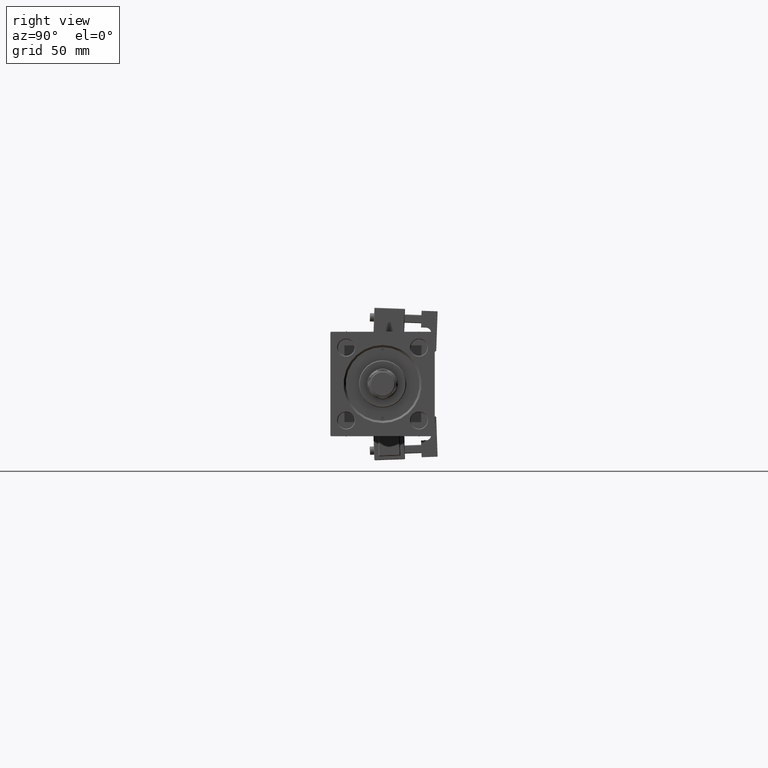
[diagram: clean part render]
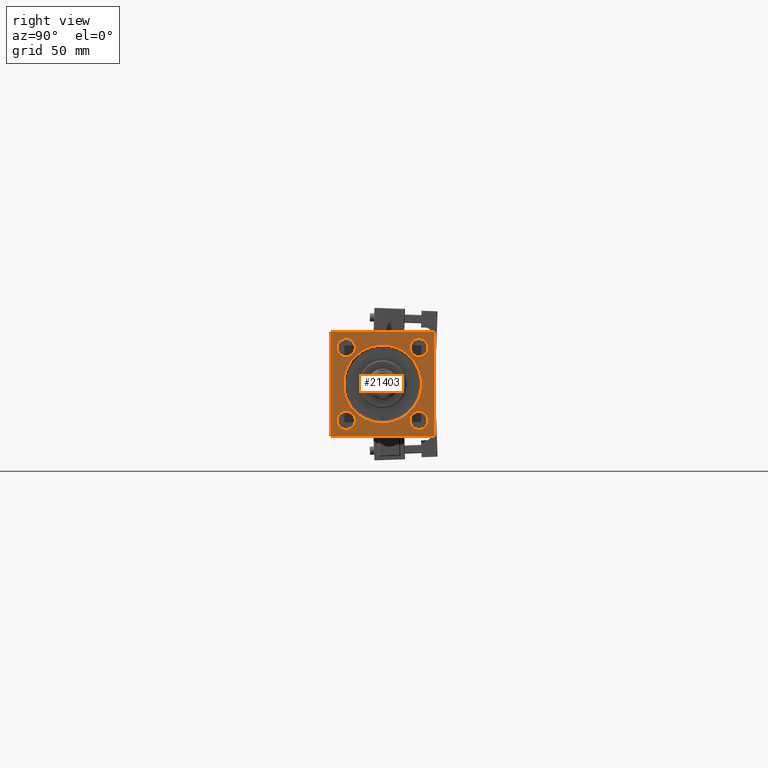
[diagram: same view with one face highlighted and labeled with its STEP entity id]
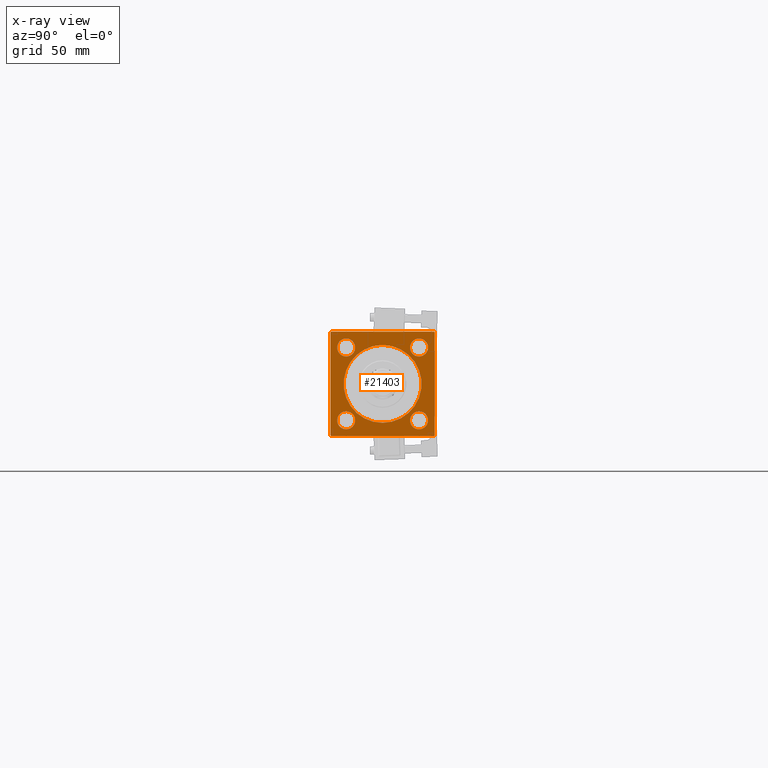
[diagram: x-ray of the same camera — body ghosted, the highlighted face saturated]
A machine part, right view. The second image highlights one B-rep face of the part: STEP entity #21403.
The next image is the same camera in x-ray: the body ghosted, the highlighted face saturated — about 0% of this face is hidden behind the body in this view.
In plain terms, the highlighted planar face has unit normal (-1, 0, 0).
Its self-contained STEP definition (entity closure, byte-faithful):
#16 = EDGE_CURVE ( 'NONE', #51897, #50936, #35708, .T. ) ;
#509 = CARTESIAN_POINT ( 'NONE',  ( 434.0000000000000000, -26.14999999999999147, 26.14999999999999503 ) ) ;
#1224 = CIRCLE ( 'NONE', #45867, 6.500000000000119904 ) ;
#2184 = VERTEX_POINT ( 'NONE', #19121 ) ;
#2664 = LINE ( 'NONE', #40227, #16846 ) ;
#2744 = ORIENTED_EDGE ( 'NONE', *, *, #34315, .T. ) ;
#3252 = CARTESIAN_POINT ( 'NONE',  ( 434.0000000000000000, -36.99999999999994316, 37.49999999999997868 ) ) ;
#3347 = AXIS2_PLACEMENT_3D ( 'NONE', #509, #33945, #13103 ) ;
#3684 = EDGE_CURVE ( 'NONE', #23493, #37325, #12677, .T. ) ;
#3805 = VERTEX_POINT ( 'NONE', #46662 ) ;
#3864 = EDGE_CURVE ( 'NONE', #27398, #12530, #23863, .T. ) ;
#4253 = CARTESIAN_POINT ( 'NONE',  ( 434.0000000000000000, 37.50000000000000000, 37.49999999999999289 ) ) ;
#5393 = VERTEX_POINT ( 'NONE', #18931 ) ;
#5474 = DIRECTION ( 'NONE',  ( 0.000000000000000000, 0.000000000000000000, 1.000000000000000000 ) ) ;
#5615 = EDGE_LOOP ( 'NONE', ( #37468, #13092 ) ) ;
#5618 = EDGE_CURVE ( 'NONE', #45433, #3805, #27642, .T. ) ;
#6652 = VERTEX_POINT ( 'NONE', #20175 ) ;
#6961 = ORIENTED_EDGE ( 'NONE', *, *, #13009, .T. ) ;
#7636 = CARTESIAN_POINT ( 'NONE',  ( 434.0000000000000000, 3.429011037612599137E-15, 28.00000000000008171 ) ) ;
#7690 = DIRECTION ( 'NONE',  ( -1.000000000000000000, -0.000000000000000000, 0.000000000000000000 ) ) ;
#7798 = CARTESIAN_POINT ( 'NONE',  ( 434.0000000000000000, -37.50000000000000711, -36.99999999999989342 ) ) ;
#7810 = ORIENTED_EDGE ( 'NONE', *, *, #53588, .T. ) ;
#8033 = DIRECTION ( 'NONE',  ( -1.000000000000000000, -0.000000000000000000, 0.000000000000000000 ) ) ;
#8087 = ORIENTED_EDGE ( 'NONE', *, *, #23222, .T. ) ;
#8532 = ORIENTED_EDGE ( 'NONE', *, *, #3864, .T. ) ;
#8612 = EDGE_CURVE ( 'NONE', #20960, #23493, #2664, .T. ) ;
#9560 = EDGE_LOOP ( 'NONE', ( #20173, #53642, #27838, #18470, #17857, #8532, #8087, #17850 ) ) ;
#9832 = ORIENTED_EDGE ( 'NONE', *, *, #13810, .T. ) ;
#9999 = FACE_BOUND ( 'NONE', #16722, .T. ) ;
#10772 = ORIENTED_EDGE ( 'NONE', *, *, #51730, .T. ) ;
#10896 = AXIS2_PLACEMENT_3D ( 'NONE', #17972, #45958, #25932 ) ;
#11359 = ORIENTED_EDGE ( 'NONE', *, *, #20016, .T. ) ;
#12530 = VERTEX_POINT ( 'NONE', #40508 ) ;
#12677 = LINE ( 'NONE', #45308, #16801 ) ;
#13009 = EDGE_CURVE ( 'NONE', #46269, #29653, #48494, .T. ) ;
#13092 = ORIENTED_EDGE ( 'NONE', *, *, #16, .T. ) ;
#13103 = DIRECTION ( 'NONE',  ( 0.000000000000000000, 0.000000000000000000, 1.000000000000000000 ) ) ;
#13810 = EDGE_CURVE ( 'NONE', #52958, #2184, #1224, .T. ) ;
#15372 = AXIS2_PLACEMENT_3D ( 'NONE', #21382, #43019, #5474 ) ;
#15762 = CARTESIAN_POINT ( 'NONE',  ( 434.0000000000000000, 0.000000000000000000, -28.00000000000008171 ) ) ;
#16241 = DIRECTION ( 'NONE',  ( -1.000000000000000000, -0.000000000000000000, 0.000000000000000000 ) ) ;
#16416 = DIRECTION ( 'NONE',  ( 0.000000000000000000, 0.000000000000000000, 1.000000000000000000 ) ) ;
#16518 = VECTOR ( 'NONE', #53570, 1000.000000000000000 ) ;
#16722 = EDGE_LOOP ( 'NONE', ( #26020, #7810 ) ) ;
#16801 = VECTOR ( 'NONE', #29410, 1000.000000000000000 ) ;
#16846 = VECTOR ( 'NONE', #19382, 1000.000000000000114 ) ;
#17850 = ORIENTED_EDGE ( 'NONE', *, *, #8612, .T. ) ;
#17849 = AXIS2_PLACEMENT_3D ( 'NONE', #53338, #28381, #24250 ) ;
#17857 = ORIENTED_EDGE ( 'NONE', *, *, #17973, .F. ) ;
#17972 = CARTESIAN_POINT ( 'NONE',  ( 434.0000000000000000, 26.14999999999999858, 26.15000000000000213 ) ) ;
#17973 = EDGE_CURVE ( 'NONE', #27398, #38787, #37706, .T. ) ;
#18470 = ORIENTED_EDGE ( 'NONE', *, *, #27428, .T. ) ;
#18931 = CARTESIAN_POINT ( 'NONE',  ( 434.0000000000000000, 26.14999999999999858, 32.65000000000012648 ) ) ;
#19121 = CARTESIAN_POINT ( 'NONE',  ( 434.0000000000000000, -26.15000000000000213, -32.65000000000012648 ) ) ;
#19249 = AXIS2_PLACEMENT_3D ( 'NONE', #28310, #16241, #28035 ) ;
#19382 = DIRECTION ( 'NONE',  ( -0.000000000000000000, -0.7071067811865474617, -0.7071067811865474617 ) ) ;
#20016 = EDGE_CURVE ( 'NONE', #43714, #30009, #34635, .T. ) ;
#20126 = ORIENTED_EDGE ( 'NONE', *, *, #39238, .T. ) ;
#20173 = ORIENTED_EDGE ( 'NONE', *, *, #3684, .T. ) ;
#20175 = CARTESIAN_POINT ( 'NONE',  ( 434.0000000000000000, 26.14999999999999858, 19.64999999999988134 ) ) ;
#20260 = EDGE_CURVE ( 'NONE', #50936, #51897, #49523, .T. ) ;
#20679 = CARTESIAN_POINT ( 'NONE',  ( 434.0000000000000000, -37.50000000000000000, 36.99999999999992184 ) ) ;
#20902 = DIRECTION ( 'NONE',  ( 0.000000000000000000, 0.000000000000000000, 1.000000000000000000 ) ) ;
#20960 = VERTEX_POINT ( 'NONE', #3252 ) ;
#21382 = CARTESIAN_POINT ( 'NONE',  ( 434.0000000000000000, 0.000000000000000000, 0.000000000000000000 ) ) ;
#21403 = ADVANCED_FACE ( 'NONE', ( #9999, #26734, #34683, #29293, #43438, #29024 ), #22066, .F. ) ;
#21740 = EDGE_LOOP ( 'NONE', ( #20126, #11359 ) ) ;
#22066 = PLANE ( 'NONE',  #46917 ) ;
#22605 = CARTESIAN_POINT ( 'NONE',  ( 434.0000000000000000, 0.000000000000000000, 0.000000000000000000 ) ) ;
#23222 = EDGE_CURVE ( 'NONE', #12530, #20960, #33361, .T. ) ;
#23348 = DIRECTION ( 'NONE',  ( 0.000000000000000000, 0.7071067811865474617, -0.7071067811865474617 ) ) ;
#23493 = VERTEX_POINT ( 'NONE', #20679 ) ;
#23863 = LINE ( 'NONE', #36487, #46527 ) ;
#23938 = CARTESIAN_POINT ( 'NONE',  ( 434.0000000000000000, 37.50000000000000000, -36.99999999999993605 ) ) ;
#24130 = CARTESIAN_POINT ( 'NONE',  ( 434.0000000000000000, -26.15000000000000213, -26.15000000000000213 ) ) ;
#24250 = DIRECTION ( 'NONE',  ( 0.000000000000000000, 0.000000000000000000, 1.000000000000000000 ) ) ;
#24916 = CARTESIAN_POINT ( 'NONE',  ( 434.0000000000000000, 26.14999999999999858, -32.65000000000012648 ) ) ;
#25179 = CARTESIAN_POINT ( 'NONE',  ( 434.0000000000000000, -26.15000000000000213, -19.64999999999988489 ) ) ;
#25932 = DIRECTION ( 'NONE',  ( 0.000000000000000000, 0.000000000000000000, 1.000000000000000000 ) ) ;
#26020 = ORIENTED_EDGE ( 'NONE', *, *, #28045, .T. ) ;
#26270 = EDGE_LOOP ( 'NONE', ( #10772, #9832 ) ) ;
#26734 = FACE_BOUND ( 'NONE', #5615, .T. ) ;
#27398 = VERTEX_POINT ( 'NONE', #44770 ) ;
#27428 = EDGE_CURVE ( 'NONE', #45433, #38787, #54108, .T. ) ;
#27642 = LINE ( 'NONE', #48753, #53483 ) ;
#27838 = ORIENTED_EDGE ( 'NONE', *, *, #5618, .F. ) ;
#27981 = CARTESIAN_POINT ( 'NONE',  ( 434.0000000000000000, -26.14999999999999147, 32.65000000000011227 ) ) ;
#28035 = DIRECTION ( 'NONE',  ( 0.000000000000000000, 0.000000000000000000, 1.000000000000000000 ) ) ;
#28045 = EDGE_CURVE ( 'NONE', #6652, #5393, #41943, .T. ) ;
#28310 = CARTESIAN_POINT ( 'NONE',  ( 434.0000000000000000, 0.000000000000000000, 0.000000000000000000 ) ) ;
#28332 = AXIS2_PLACEMENT_3D ( 'NONE', #34322, #8033, #20902 ) ;
#28381 = DIRECTION ( 'NONE',  ( -1.000000000000000000, -0.000000000000000000, 0.000000000000000000 ) ) ;
#29024 = FACE_OUTER_BOUND ( 'NONE', #9560, .T. ) ;
#29288 = DIRECTION ( 'NONE',  ( 0.000000000000000000, 0.000000000000000000, 1.000000000000000000 ) ) ;
#29293 = FACE_BOUND ( 'NONE', #32140, .T. ) ;
#29410 = DIRECTION ( 'NONE',  ( 0.000000000000000000, -9.251858538542972814E-17, -1.000000000000000000 ) ) ;
#29547 = CARTESIAN_POINT ( 'NONE',  ( 434.0000000000000000, -26.14999999999999147, 26.14999999999999503 ) ) ;
#29653 = VERTEX_POINT ( 'NONE', #53316 ) ;
#29704 = AXIS2_PLACEMENT_3D ( 'NONE', #46541, #38323, #29288 ) ;
#29743 = DIRECTION ( 'NONE',  ( 0.000000000000000000, 0.000000000000000000, -1.000000000000000000 ) ) ;
#30009 = VERTEX_POINT ( 'NONE', #15762 ) ;
#30464 = CARTESIAN_POINT ( 'NONE',  ( 434.0000000000000000, -26.14999999999999147, 19.64999999999988134 ) ) ;
#32140 = EDGE_LOOP ( 'NONE', ( #6961, #2744 ) ) ;
#32442 = VECTOR ( 'NONE', #23348, 1000.000000000000114 ) ;
#33361 = LINE ( 'NONE', #50096, #46993 ) ;
#33945 = DIRECTION ( 'NONE',  ( -1.000000000000000000, -0.000000000000000000, 0.000000000000000000 ) ) ;
#34315 = EDGE_CURVE ( 'NONE', #29653, #46269, #38286, .T. ) ;
#34322 = CARTESIAN_POINT ( 'NONE',  ( 434.0000000000000000, -26.15000000000000213, -26.15000000000000213 ) ) ;
#34635 = CIRCLE ( 'NONE', #15372, 28.00000000000008171 ) ;
#34683 = FACE_BOUND ( 'NONE', #26270, .T. ) ;
#35708 = CIRCLE ( 'NONE', #3347, 6.500000000000113687 ) ;
#36487 = CARTESIAN_POINT ( 'NONE',  ( 434.0000000000000000, 36.99999999999994316, 37.49999999999999289 ) ) ;
#36771 = DIRECTION ( 'NONE',  ( 0.000000000000000000, 0.000000000000000000, 1.000000000000000000 ) ) ;
#37325 = VERTEX_POINT ( 'NONE', #7798 ) ;
#37468 = ORIENTED_EDGE ( 'NONE', *, *, #20260, .T. ) ;
#37706 = LINE ( 'NONE', #4253, #48575 ) ;
#38286 = CIRCLE ( 'NONE', #46145, 6.500000000000119904 ) ;
#38323 = DIRECTION ( 'NONE',  ( -1.000000000000000000, -0.000000000000000000, 0.000000000000000000 ) ) ;
#38545 = DIRECTION ( 'NONE',  ( 0.000000000000000000, -1.000000000000000000, -1.850371707708594316E-16 ) ) ;
#38787 = VERTEX_POINT ( 'NONE', #42457 ) ;
#38799 = DIRECTION ( 'NONE',  ( -1.000000000000000000, -0.000000000000000000, 0.000000000000000000 ) ) ;
#39238 = EDGE_CURVE ( 'NONE', #30009, #43714, #44602, .T. ) ;
#40053 = DIRECTION ( 'NONE',  ( 0.000000000000000000, -0.7071067811865474617, 0.7071067811865474617 ) ) ;
#40227 = CARTESIAN_POINT ( 'NONE',  ( 434.0000000000000000, -37.50000000000000000, 36.99999999999992184 ) ) ;
#40508 = CARTESIAN_POINT ( 'NONE',  ( 434.0000000000000000, 36.99999999999994316, 37.49999999999999289 ) ) ;
#40606 = DIRECTION ( 'NONE',  ( -1.000000000000000000, -0.000000000000000000, 0.000000000000000000 ) ) ;
#41943 = CIRCLE ( 'NONE', #29704, 6.500000000000119904 ) ;
#42145 = DIRECTION ( 'NONE',  ( -1.000000000000000000, -0.000000000000000000, 0.000000000000000000 ) ) ;
#42457 = CARTESIAN_POINT ( 'NONE',  ( 434.0000000000000000, 37.50000000000000000, -36.99999999999993605 ) ) ;
#43019 = DIRECTION ( 'NONE',  ( -1.000000000000000000, -0.000000000000000000, 0.000000000000000000 ) ) ;
#43438 = FACE_BOUND ( 'NONE', #21740, .T. ) ;
#43643 = LINE ( 'NONE', #51890, #32442 ) ;
#43714 = VERTEX_POINT ( 'NONE', #7636 ) ;
#44345 = DIRECTION ( 'NONE',  ( 0.000000000000000000, -1.000000000000000000, 0.000000000000000000 ) ) ;
#44602 = CIRCLE ( 'NONE', #19249, 28.00000000000008171 ) ;
#44703 = CARTESIAN_POINT ( 'NONE',  ( 434.0000000000000000, 26.14999999999999858, -26.15000000000000213 ) ) ;
#44770 = CARTESIAN_POINT ( 'NONE',  ( 434.0000000000000000, 37.50000000000000000, 36.99999999999993605 ) ) ;
#44852 = EDGE_CURVE ( 'NONE', #37325, #3805, #43643, .T. ) ;
#45308 = CARTESIAN_POINT ( 'NONE',  ( 434.0000000000000000, -37.50000000000000000, 37.49999999999997868 ) ) ;
#45433 = VERTEX_POINT ( 'NONE', #51424 ) ;
#45852 = CIRCLE ( 'NONE', #28332, 6.500000000000119904 ) ;
#45867 = AXIS2_PLACEMENT_3D ( 'NONE', #24130, #7690, #53760 ) ;
#45958 = DIRECTION ( 'NONE',  ( -1.000000000000000000, -0.000000000000000000, 0.000000000000000000 ) ) ;
#46145 = AXIS2_PLACEMENT_3D ( 'NONE', #44703, #40606, #36771 ) ;
#46262 = DIRECTION ( 'NONE',  ( 0.000000000000000000, 0.000000000000000000, 1.000000000000000000 ) ) ;
#46269 = VERTEX_POINT ( 'NONE', #24916 ) ;
#46527 = VECTOR ( 'NONE', #40053, 1000.000000000000114 ) ;
#46541 = CARTESIAN_POINT ( 'NONE',  ( 434.0000000000000000, 26.14999999999999858, 26.15000000000000213 ) ) ;
#46662 = CARTESIAN_POINT ( 'NONE',  ( 434.0000000000000000, -36.99999999999990052, -37.50000000000000000 ) ) ;
#46883 = AXIS2_PLACEMENT_3D ( 'NONE', #29547, #42145, #46262 ) ;
#46917 = AXIS2_PLACEMENT_3D ( 'NONE', #22605, #38799, #16416 ) ;
#46993 = VECTOR ( 'NONE', #38545, 1000.000000000000000 ) ;
#48494 = CIRCLE ( 'NONE', #17849, 6.500000000000119904 ) ;
#48575 = VECTOR ( 'NONE', #29743, 1000.000000000000000 ) ;
#48753 = CARTESIAN_POINT ( 'NONE',  ( 434.0000000000000000, 37.50000000000000000, -37.50000000000000000 ) ) ;
#49523 = CIRCLE ( 'NONE', #46883, 6.500000000000113687 ) ;
#50096 = CARTESIAN_POINT ( 'NONE',  ( 434.0000000000000000, 37.50000000000000000, 37.49999999999999289 ) ) ;
#50936 = VERTEX_POINT ( 'NONE', #30464 ) ;
#51189 = CIRCLE ( 'NONE', #10896, 6.500000000000119904 ) ;
#51424 = CARTESIAN_POINT ( 'NONE',  ( 434.0000000000000000, 36.99999999999994316, -37.50000000000000000 ) ) ;
#51730 = EDGE_CURVE ( 'NONE', #2184, #52958, #45852, .T. ) ;
#51890 = CARTESIAN_POINT ( 'NONE',  ( 434.0000000000000000, -36.99999999999990052, -37.50000000000000000 ) ) ;
#51897 = VERTEX_POINT ( 'NONE', #27981 ) ;
#52958 = VERTEX_POINT ( 'NONE', #25179 ) ;
#53316 = CARTESIAN_POINT ( 'NONE',  ( 434.0000000000000000, 26.14999999999999858, -19.64999999999988489 ) ) ;
#53338 = CARTESIAN_POINT ( 'NONE',  ( 434.0000000000000000, 26.14999999999999858, -26.15000000000000213 ) ) ;
#53483 = VECTOR ( 'NONE', #44345, 1000.000000000000000 ) ;
#53570 = DIRECTION ( 'NONE',  ( -0.000000000000000000, 0.7071067811865426878, 0.7071067811865524577 ) ) ;
#53588 = EDGE_CURVE ( 'NONE', #5393, #6652, #51189, .T. ) ;
#53642 = ORIENTED_EDGE ( 'NONE', *, *, #44852, .T. ) ;
#53760 = DIRECTION ( 'NONE',  ( 0.000000000000000000, 0.000000000000000000, 1.000000000000000000 ) ) ;
#54108 = LINE ( 'NONE', #23938, #16518 ) ;